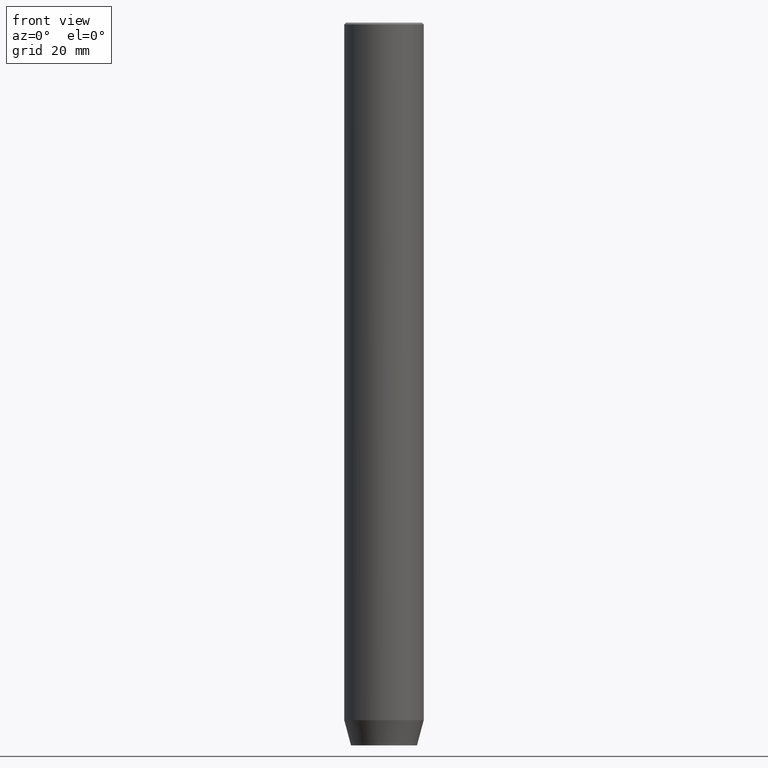
[diagram: clean part render]
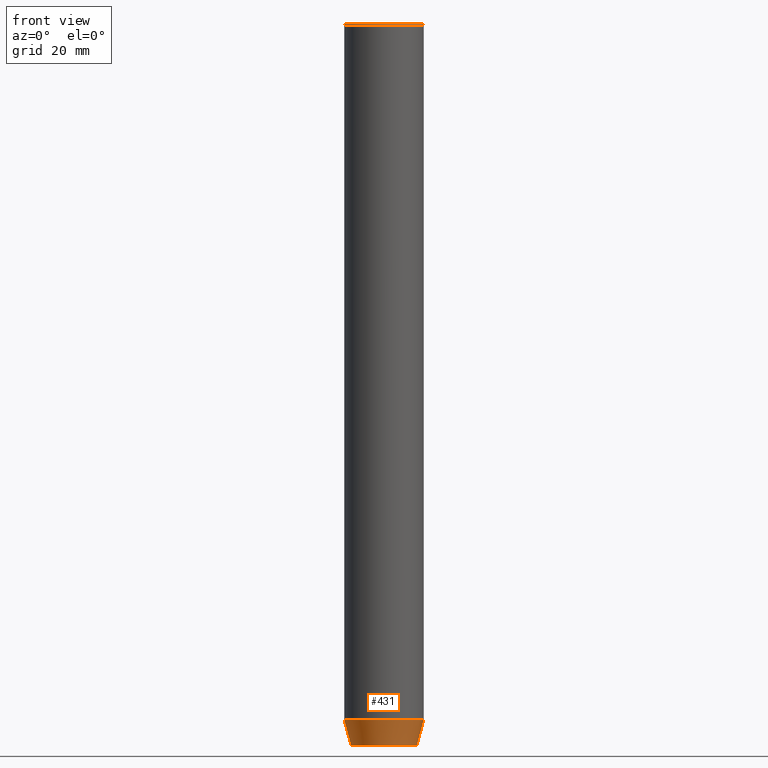
[diagram: same view with one face highlighted and labeled with its STEP entity id]
A machine part, front view. The second image highlights one B-rep face of the part: STEP entity #431.
In plain terms, the highlighted conical surface has half-angle 15 deg.
Its self-contained STEP definition (entity closure, byte-faithful):
#1 = DIRECTION ( 'NONE',  ( 1.000000000000000000, 0.000000000000000000, 0.000000000000000000 ) ) ;
#34 = CIRCLE ( 'NONE', #161, 11.00000000000000000 ) ;
#80 = DIRECTION ( 'NONE',  ( -0.000000000000000000, -0.000000000000000000, 1.000000000000000000 ) ) ;
#107 = CARTESIAN_POINT ( 'NONE',  ( 9.124355652982133691, 0.000000000000000000, -200.0000000000000000 ) ) ;
#109 = CONICAL_SURFACE ( 'NONE', #209, 11.00000000000000000, 0.2617993877991500740 ) ;
#111 = CARTESIAN_POINT ( 'NONE',  ( -9.124355652982133691, 1.232261386766375507E-15, -200.0000000000000000 ) ) ;
#125 = CARTESIAN_POINT ( 'NONE',  ( 11.00000000000000000, 0.000000000000000000, -193.0000000000000000 ) ) ;
#126 = DIRECTION ( 'NONE',  ( 1.000000000000000000, 0.000000000000000000, 0.000000000000000000 ) ) ;
#142 = CARTESIAN_POINT ( 'NONE',  ( 0.000000000000000000, 0.000000000000000000, -193.0000000000000000 ) ) ;
#161 = AXIS2_PLACEMENT_3D ( 'NONE', #458, #405, #126 ) ;
#171 = EDGE_CURVE ( 'NONE', #272, #197, #437, .T. ) ;
#176 = EDGE_CURVE ( 'NONE', #197, #268, #503, .T. ) ;
#179 = LINE ( 'NONE', #360, #329 ) ;
#197 = VERTEX_POINT ( 'NONE', #107 ) ;
#209 = AXIS2_PLACEMENT_3D ( 'NONE', #142, #415, #359 ) ;
#220 = FACE_OUTER_BOUND ( 'NONE', #335, .T. ) ;
#243 = AXIS2_PLACEMENT_3D ( 'NONE', #414, #80, #1 ) ;
#268 = VERTEX_POINT ( 'NONE', #564 ) ;
#271 = DIRECTION ( 'NONE',  ( -0.2588190451025213501, 3.169619151431772337E-17, 0.9659258262890680902 ) ) ;
#272 = VERTEX_POINT ( 'NONE', #111 ) ;
#329 = VECTOR ( 'NONE', #271, 1000.000000000000000 ) ;
#335 = EDGE_LOOP ( 'NONE', ( #472, #520, #450, #491 ) ) ;
#359 = DIRECTION ( 'NONE',  ( 1.000000000000000000, 0.000000000000000000, 0.000000000000000000 ) ) ;
#360 = CARTESIAN_POINT ( 'NONE',  ( -11.00000000000000000, 1.347111479062088405E-15, -193.0000000000000000 ) ) ;
#381 = VERTEX_POINT ( 'NONE', #541 ) ;
#394 = EDGE_CURVE ( 'NONE', #381, #268, #34, .T. ) ;
#405 = DIRECTION ( 'NONE',  ( -0.000000000000000000, -0.000000000000000000, 1.000000000000000000 ) ) ;
#414 = CARTESIAN_POINT ( 'NONE',  ( 0.000000000000000000, 0.000000000000000000, -200.0000000000000000 ) ) ;
#415 = DIRECTION ( 'NONE',  ( -0.000000000000000000, -0.000000000000000000, 1.000000000000000000 ) ) ;
#428 = VECTOR ( 'NONE', #461, 1000.000000000000000 ) ;
#431 = ADVANCED_FACE ( 'NONE', ( #220 ), #109, .T. ) ;
#437 = CIRCLE ( 'NONE', #243, 9.124355652982133691 ) ;
#450 = ORIENTED_EDGE ( 'NONE', *, *, #176, .T. ) ;
#458 = CARTESIAN_POINT ( 'NONE',  ( 0.000000000000000000, 0.000000000000000000, -193.0000000000000000 ) ) ;
#461 = DIRECTION ( 'NONE',  ( 0.2588190451025213501, 0.000000000000000000, 0.9659258262890680902 ) ) ;
#472 = ORIENTED_EDGE ( 'NONE', *, *, #568, .F. ) ;
#491 = ORIENTED_EDGE ( 'NONE', *, *, #394, .F. ) ;
#503 = LINE ( 'NONE', #125, #428 ) ;
#520 = ORIENTED_EDGE ( 'NONE', *, *, #171, .T. ) ;
#541 = CARTESIAN_POINT ( 'NONE',  ( -11.00000000000000000, 1.347111479062088405E-15, -193.0000000000000000 ) ) ;
#564 = CARTESIAN_POINT ( 'NONE',  ( 11.00000000000000000, 0.000000000000000000, -193.0000000000000000 ) ) ;
#568 = EDGE_CURVE ( 'NONE', #272, #381, #179, .T. ) ;